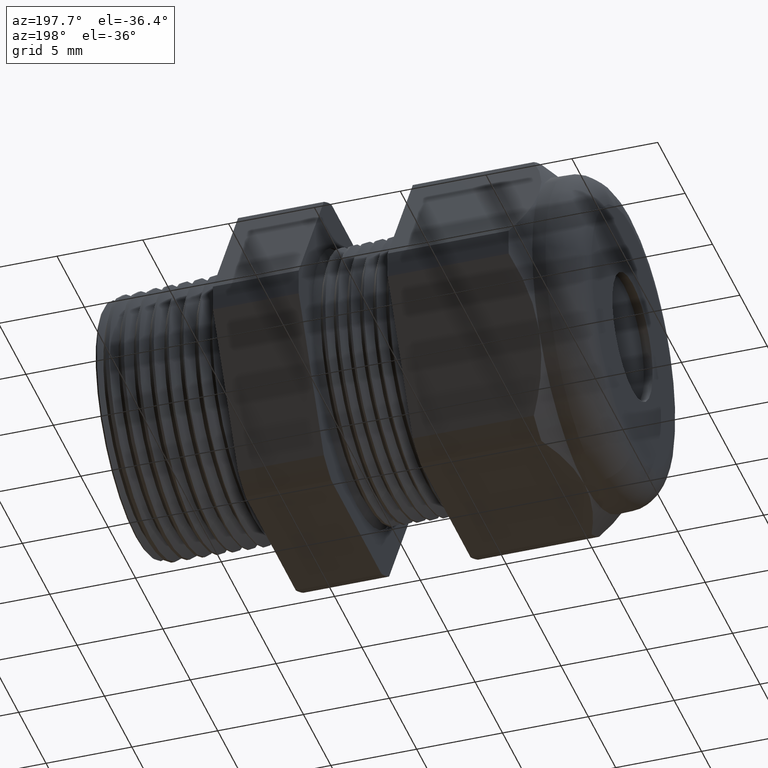
[diagram: clean part render]
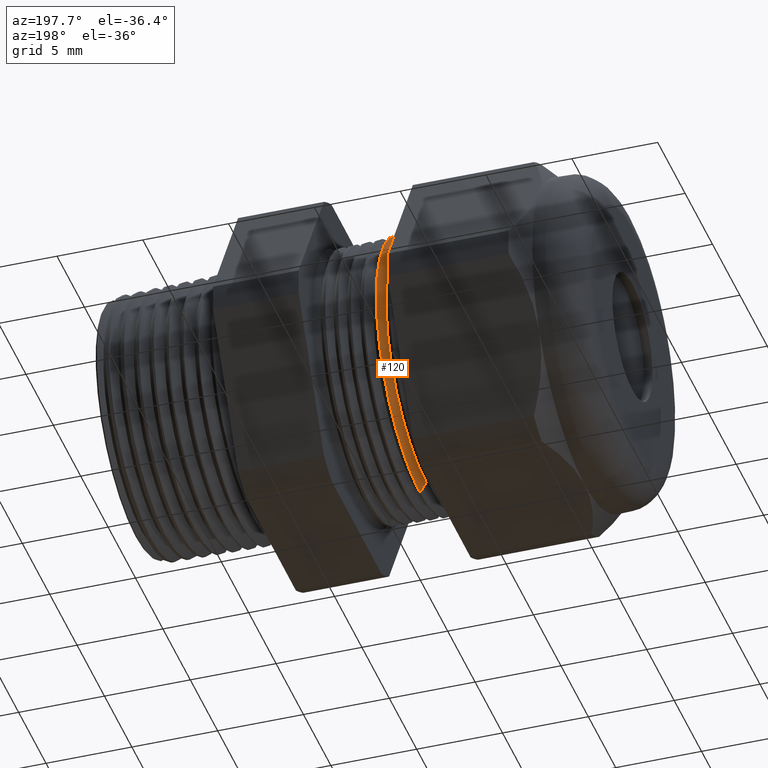
[diagram: same view with one face highlighted and labeled with its STEP entity id]
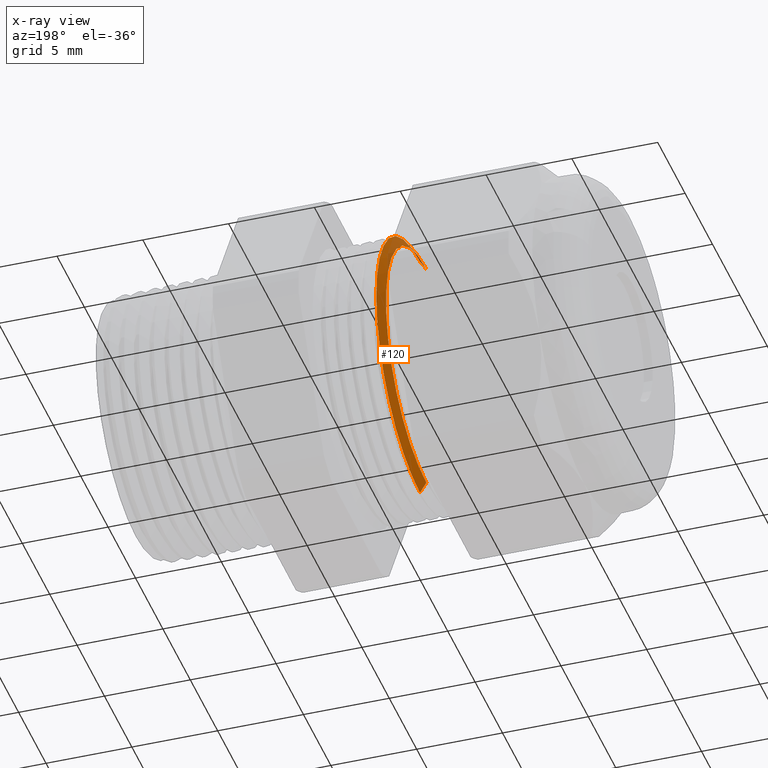
[diagram: x-ray of the same camera — body ghosted, the highlighted face saturated]
A machine part, auxiliary view. The second image highlights one B-rep face of the part: STEP entity #120.
The next image is the same camera in x-ray: the body ghosted, the highlighted face saturated — about 10% of this face is hidden behind the body in this view.
In plain terms, the highlighted conical surface has half-angle 58.5 deg.
Its self-contained STEP definition (entity closure, byte-faithful):
#62 = ORIENTED_EDGE ( 'NONE', *, *, #63, .T. ) ;
#63 = EDGE_CURVE ( 'NONE', #119, #64, #1379, .T. ) ;
#64 = VERTEX_POINT ( 'NONE', #1439 ) ;
#65 = ORIENTED_EDGE ( 'NONE', *, *, #121, .T. ) ;
#66 = EDGE_CURVE ( 'NONE', #118, #83, #1438, .T. ) ;
#75 = EDGE_LOOP ( 'NONE', ( #65, #62, #81, #84 ) ) ;
#81 = ORIENTED_EDGE ( 'NONE', *, *, #82, .T. ) ;
#82 = EDGE_CURVE ( 'NONE', #64, #83, #1411, .T. ) ;
#83 = VERTEX_POINT ( 'NONE', #1469 ) ;
#84 = ORIENTED_EDGE ( 'NONE', *, *, #66, .F. ) ;
#118 = VERTEX_POINT ( 'NONE', #1526 ) ;
#119 = VERTEX_POINT ( 'NONE', #1525 ) ;
#120 = ADVANCED_FACE ( 'NONE', ( #1524 ), #1521, .T. ) ;
#121 = EDGE_CURVE ( 'NONE', #118, #119, #1522, .T. ) ;
#1378 = CARTESIAN_POINT ( 'NONE',  ( -0.6670917551658959200, 3.546953527628497700E-017, 0.2896307351718082600 ) ) ;
#1379 = LINE ( 'NONE', #1378, #1441 ) ;
#1411 = CIRCLE ( 'NONE', #1473, 0.3134711658259260500 ) ;
#1435 = DIRECTION ( 'NONE',  ( 0.5224985647159337000, 0.0000000000000000000, -0.8526401643541013900 ) ) ;
#1436 = VECTOR ( 'NONE', #1435, 39.37007874015748900 ) ;
#1437 = CARTESIAN_POINT ( 'NONE',  ( -0.6670917551658959200, 0.0000000000000000000, -0.2896307351718082600 ) ) ;
#1438 = LINE ( 'NONE', #1437, #1436 ) ;
#1439 = CARTESIAN_POINT ( 'NONE',  ( -0.6524823204714574900, 0.0000000000000000000, 0.3134711658259259300 ) ) ;
#1440 = DIRECTION ( 'NONE',  ( 0.5224985647159337000, 1.044183048100723500E-016, 0.8526401643541013900 ) ) ;
#1441 = VECTOR ( 'NONE', #1440, 39.37007874015748900 ) ;
#1469 = CARTESIAN_POINT ( 'NONE',  ( -0.6524823204714574900, 3.838914598537093900E-017, -0.3134711658259259300 ) ) ;
#1470 = DIRECTION ( 'NONE',  ( 0.0000000000000000000, 0.0000000000000000000, -1.000000000000000000 ) ) ;
#1471 = DIRECTION ( 'NONE',  ( -1.000000000000000000, 0.0000000000000000000, 0.0000000000000000000 ) ) ;
#1472 = CARTESIAN_POINT ( 'NONE',  ( -0.6524823204714574900, 0.0000000000000000000, 0.0000000000000000000 ) ) ;
#1473 = AXIS2_PLACEMENT_3D ( 'NONE', #1472, #1471, #1470 ) ;
#1514 = DIRECTION ( 'NONE',  ( 0.0000000000000000000, 0.0000000000000000000, -1.000000000000000000 ) ) ;
#1515 = DIRECTION ( 'NONE',  ( 1.000000000000000000, 0.0000000000000000000, 0.0000000000000000000 ) ) ;
#1516 = CARTESIAN_POINT ( 'NONE',  ( -0.6670917551658959200, 0.0000000000000000000, 0.0000000000000000000 ) ) ;
#1517 = AXIS2_PLACEMENT_3D ( 'NONE', #1516, #1515, #1514 ) ;
#1518 = DIRECTION ( 'NONE',  ( 0.0000000000000000000, 0.0000000000000000000, -1.000000000000000000 ) ) ;
#1519 = DIRECTION ( 'NONE',  ( 1.000000000000000000, 0.0000000000000000000, 0.0000000000000000000 ) ) ;
#1520 = AXIS2_PLACEMENT_3D ( 'NONE', #1523, #1519, #1518 ) ;
#1521 = CONICAL_SURFACE ( 'NONE', #1520, 0.2896307351718082600, 1.021017612416700500 ) ;
#1522 = CIRCLE ( 'NONE', #1517, 0.2896307351718082600 ) ;
#1523 = CARTESIAN_POINT ( 'NONE',  ( -0.6670917551658959200, 0.0000000000000000000, 0.0000000000000000000 ) ) ;
#1524 = FACE_OUTER_BOUND ( 'NONE', #75, .T. ) ;
#1525 = CARTESIAN_POINT ( 'NONE',  ( -0.6670917551658959200, 0.0000000000000000000, 0.2896307351718082600 ) ) ;
#1526 = CARTESIAN_POINT ( 'NONE',  ( -0.6670917551658959200, 3.697415818799097200E-017, -0.2896307351718082600 ) ) ;